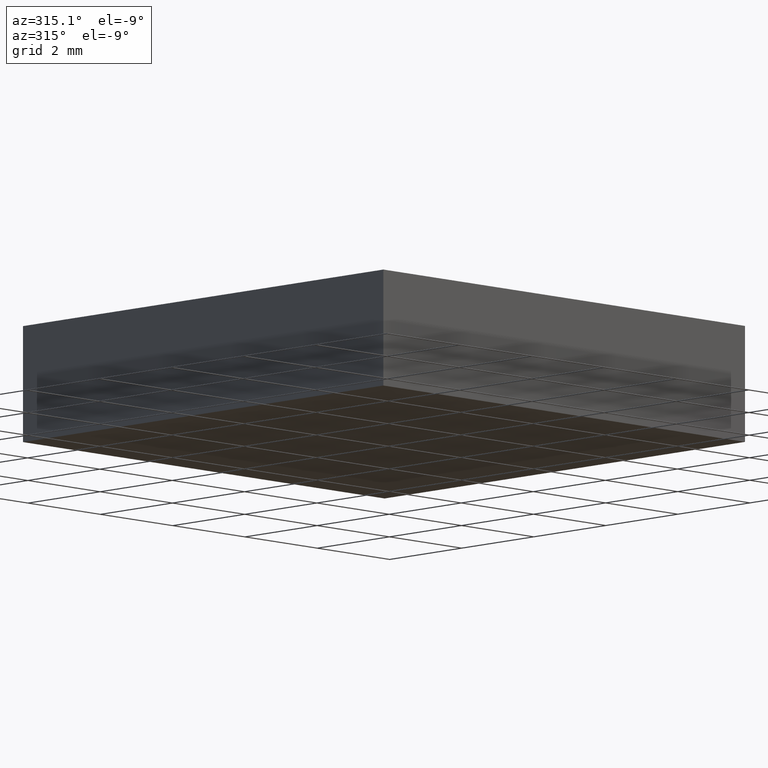
[diagram: clean part render]
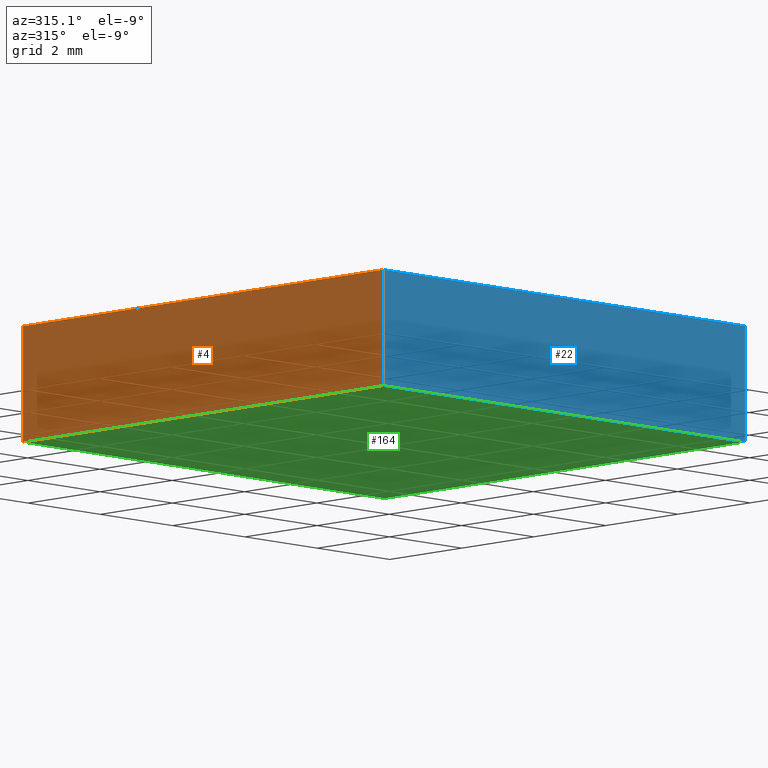
[diagram: same view with three faces highlighted in distinct colors, each labeled with its STEP entity id]
A machine part, auxiliary view with three faces highlighted in distinct colors.
Their STEP definitions:

[orange] entity #4 — the highlighted planar face has unit normal (1, 0, -0).
#2 = LINE ( 'NONE', #51, #152 ) ;
#4 = ADVANCED_FACE ( 'NONE', ( #126 ), #38, .F. ) ;
#7 = DIRECTION ( 'NONE',  ( -0.0000000000000000000, -0.0000000000000000000, -1.000000000000000000 ) ) ;
#14 = EDGE_CURVE ( 'NONE', #112, #180, #2, .T. ) ;
#21 = DIRECTION ( 'NONE',  ( 0.0000000000000000000, -1.000000000000000000, 0.0000000000000000000 ) ) ;
#23 = CARTESIAN_POINT ( 'NONE',  ( 35.49917431035403600, 19.62529673381063900, 2.299999999999999800 ) ) ;
#36 = DIRECTION ( 'NONE',  ( 1.000000000000000000, 0.0000000000000000000, -0.0000000000000000000 ) ) ;
#38 = PLANE ( 'NONE',  #187 ) ;
#44 = EDGE_CURVE ( 'NONE', #59, #132, #201, .T. ) ;
#51 = CARTESIAN_POINT ( 'NONE',  ( 35.49917431035403600, 29.62529673381063600, 2.299999999999999800 ) ) ;
#53 = CARTESIAN_POINT ( 'NONE',  ( 35.49917431035403600, 29.62529673381063600, 2.299999999999999800 ) ) ;
#57 = CARTESIAN_POINT ( 'NONE',  ( 35.49917431035403600, 29.62529673381063600, 2.299999999999999800 ) ) ;
#59 = VERTEX_POINT ( 'NONE', #23 ) ;
#71 = ORIENTED_EDGE ( 'NONE', *, *, #14, .T. ) ;
#78 = LINE ( 'NONE', #93, #99 ) ;
#82 = EDGE_CURVE ( 'NONE', #112, #59, #186, .T. ) ;
#86 = DIRECTION ( 'NONE',  ( -0.0000000000000000000, 0.0000000000000000000, -1.000000000000000000 ) ) ;
#88 = DIRECTION ( 'NONE',  ( -0.0000000000000000000, -0.0000000000000000000, -1.000000000000000000 ) ) ;
#90 = ORIENTED_EDGE ( 'NONE', *, *, #163, .T. ) ;
#91 = DIRECTION ( 'NONE',  ( 0.0000000000000000000, -1.000000000000000000, 0.0000000000000000000 ) ) ;
#93 = CARTESIAN_POINT ( 'NONE',  ( 35.49917431035403600, 29.62529673381063600, 0.0000000000000000000 ) ) ;
#99 = VECTOR ( 'NONE', #91, 1000.000000000000000 ) ;
#112 = VERTEX_POINT ( 'NONE', #57 ) ;
#117 = CARTESIAN_POINT ( 'NONE',  ( 35.49917431035403600, 29.62529673381063600, 2.299999999999999800 ) ) ;
#121 = VECTOR ( 'NONE', #21, 1000.000000000000000 ) ;
#126 = FACE_OUTER_BOUND ( 'NONE', #189, .T. ) ;
#129 = CARTESIAN_POINT ( 'NONE',  ( 35.49917431035403600, 29.62529673381063600, 0.0000000000000000000 ) ) ;
#132 = VERTEX_POINT ( 'NONE', #198 ) ;
#142 = CARTESIAN_POINT ( 'NONE',  ( 35.49917431035403600, 19.62529673381063900, 2.299999999999999800 ) ) ;
#152 = VECTOR ( 'NONE', #88, 1000.000000000000000 ) ;
#163 = EDGE_CURVE ( 'NONE', #180, #132, #78, .T. ) ;
#175 = VECTOR ( 'NONE', #7, 1000.000000000000000 ) ;
#180 = VERTEX_POINT ( 'NONE', #129 ) ;
#186 = LINE ( 'NONE', #53, #121 ) ;
#187 = AXIS2_PLACEMENT_3D ( 'NONE', #117, #36, #86 ) ;
#189 = EDGE_LOOP ( 'NONE', ( #90, #195, #197, #71 ) ) ;
#195 = ORIENTED_EDGE ( 'NONE', *, *, #44, .F. ) ;
#197 = ORIENTED_EDGE ( 'NONE', *, *, #82, .F. ) ;
#198 = CARTESIAN_POINT ( 'NONE',  ( 35.49917431035403600, 19.62529673381063900, 0.0000000000000000000 ) ) ;
#201 = LINE ( 'NONE', #142, #175 ) ;

[blue] entity #22 — the highlighted planar face has unit normal (0, 1, 0).
#6 = VECTOR ( 'NONE', #49, 1000.000000000000000 ) ;
#7 = DIRECTION ( 'NONE',  ( -0.0000000000000000000, -0.0000000000000000000, -1.000000000000000000 ) ) ;
#15 = LINE ( 'NONE', #118, #176 ) ;
#18 = AXIS2_PLACEMENT_3D ( 'NONE', #192, #52, #54 ) ;
#22 = ADVANCED_FACE ( 'NONE', ( #167 ), #73, .F. ) ;
#23 = CARTESIAN_POINT ( 'NONE',  ( 35.49917431035403600, 19.62529673381063900, 2.299999999999999800 ) ) ;
#24 = LINE ( 'NONE', #194, #6 ) ;
#30 = ORIENTED_EDGE ( 'NONE', *, *, #35, .F. ) ;
#34 = EDGE_LOOP ( 'NONE', ( #160, #153, #30, #75 ) ) ;
#35 = EDGE_CURVE ( 'NONE', #59, #80, #135, .T. ) ;
#44 = EDGE_CURVE ( 'NONE', #59, #132, #201, .T. ) ;
#49 = DIRECTION ( 'NONE',  ( 1.000000000000000000, 0.0000000000000000000, 0.0000000000000000000 ) ) ;
#52 = DIRECTION ( 'NONE',  ( 0.0000000000000000000, 1.000000000000000000, 0.0000000000000000000 ) ) ;
#54 = DIRECTION ( 'NONE',  ( 0.0000000000000000000, -0.0000000000000000000, 1.000000000000000000 ) ) ;
#55 = DIRECTION ( 'NONE',  ( -0.0000000000000000000, -0.0000000000000000000, -1.000000000000000000 ) ) ;
#59 = VERTEX_POINT ( 'NONE', #23 ) ;
#70 = EDGE_CURVE ( 'NONE', #132, #191, #24, .T. ) ;
#72 = CARTESIAN_POINT ( 'NONE',  ( 45.49917431035403600, 19.62529673381063900, 2.299999999999999800 ) ) ;
#73 = PLANE ( 'NONE',  #18 ) ;
#75 = ORIENTED_EDGE ( 'NONE', *, *, #44, .T. ) ;
#80 = VERTEX_POINT ( 'NONE', #72 ) ;
#85 = CARTESIAN_POINT ( 'NONE',  ( 35.49917431035403600, 19.62529673381063900, 2.299999999999999800 ) ) ;
#102 = DIRECTION ( 'NONE',  ( 1.000000000000000000, 0.0000000000000000000, 0.0000000000000000000 ) ) ;
#110 = VECTOR ( 'NONE', #102, 1000.000000000000000 ) ;
#118 = CARTESIAN_POINT ( 'NONE',  ( 45.49917431035403600, 19.62529673381063900, 2.299999999999999800 ) ) ;
#132 = VERTEX_POINT ( 'NONE', #198 ) ;
#135 = LINE ( 'NONE', #85, #110 ) ;
#142 = CARTESIAN_POINT ( 'NONE',  ( 35.49917431035403600, 19.62529673381063900, 2.299999999999999800 ) ) ;
#147 = CARTESIAN_POINT ( 'NONE',  ( 45.49917431035403600, 19.62529673381063900, 0.0000000000000000000 ) ) ;
#150 = EDGE_CURVE ( 'NONE', #80, #191, #15, .T. ) ;
#153 = ORIENTED_EDGE ( 'NONE', *, *, #150, .F. ) ;
#160 = ORIENTED_EDGE ( 'NONE', *, *, #70, .T. ) ;
#167 = FACE_OUTER_BOUND ( 'NONE', #34, .T. ) ;
#175 = VECTOR ( 'NONE', #7, 1000.000000000000000 ) ;
#176 = VECTOR ( 'NONE', #55, 1000.000000000000000 ) ;
#191 = VERTEX_POINT ( 'NONE', #147 ) ;
#192 = CARTESIAN_POINT ( 'NONE',  ( 35.49917431035403600, 19.62529673381063900, 2.299999999999999800 ) ) ;
#194 = CARTESIAN_POINT ( 'NONE',  ( 35.49917431035403600, 19.62529673381063900, 0.0000000000000000000 ) ) ;
#198 = CARTESIAN_POINT ( 'NONE',  ( 35.49917431035403600, 19.62529673381063900, 0.0000000000000000000 ) ) ;
#201 = LINE ( 'NONE', #142, #175 ) ;

[green] entity #164 — the highlighted planar face has unit normal (-0, 0, 1).
#1 = EDGE_CURVE ( 'NONE', #139, #180, #64, .T. ) ;
#6 = VECTOR ( 'NONE', #49, 1000.000000000000000 ) ;
#10 = CARTESIAN_POINT ( 'NONE',  ( 45.49917431035402900, 29.62529673381063600, 0.0000000000000000000 ) ) ;
#16 = EDGE_LOOP ( 'NONE', ( #69, #45, #40, #79 ) ) ;
#19 = VECTOR ( 'NONE', #166, 1000.000000000000000 ) ;
#24 = LINE ( 'NONE', #194, #6 ) ;
#26 = CARTESIAN_POINT ( 'NONE',  ( 0.0000000000000000000, 0.0000000000000000000, 0.0000000000000000000 ) ) ;
#40 = ORIENTED_EDGE ( 'NONE', *, *, #81, .F. ) ;
#42 = PLANE ( 'NONE',  #65 ) ;
#45 = ORIENTED_EDGE ( 'NONE', *, *, #1, .F. ) ;
#49 = DIRECTION ( 'NONE',  ( 1.000000000000000000, 0.0000000000000000000, 0.0000000000000000000 ) ) ;
#50 = FACE_OUTER_BOUND ( 'NONE', #16, .T. ) ;
#64 = LINE ( 'NONE', #123, #19 ) ;
#65 = AXIS2_PLACEMENT_3D ( 'NONE', #26, #182, #183 ) ;
#69 = ORIENTED_EDGE ( 'NONE', *, *, #163, .F. ) ;
#70 = EDGE_CURVE ( 'NONE', #132, #191, #24, .T. ) ;
#78 = LINE ( 'NONE', #93, #99 ) ;
#79 = ORIENTED_EDGE ( 'NONE', *, *, #70, .F. ) ;
#81 = EDGE_CURVE ( 'NONE', #191, #139, #165, .T. ) ;
#91 = DIRECTION ( 'NONE',  ( 0.0000000000000000000, -1.000000000000000000, 0.0000000000000000000 ) ) ;
#93 = CARTESIAN_POINT ( 'NONE',  ( 35.49917431035403600, 29.62529673381063600, 0.0000000000000000000 ) ) ;
#99 = VECTOR ( 'NONE', #91, 1000.000000000000000 ) ;
#123 = CARTESIAN_POINT ( 'NONE',  ( 35.49917431035403600, 29.62529673381063600, 0.0000000000000000000 ) ) ;
#129 = CARTESIAN_POINT ( 'NONE',  ( 35.49917431035403600, 29.62529673381063600, 0.0000000000000000000 ) ) ;
#132 = VERTEX_POINT ( 'NONE', #198 ) ;
#139 = VERTEX_POINT ( 'NONE', #10 ) ;
#144 = CARTESIAN_POINT ( 'NONE',  ( 45.49917431035402900, 29.62529673381063600, 0.0000000000000000000 ) ) ;
#147 = CARTESIAN_POINT ( 'NONE',  ( 45.49917431035403600, 19.62529673381063900, 0.0000000000000000000 ) ) ;
#163 = EDGE_CURVE ( 'NONE', #180, #132, #78, .T. ) ;
#164 = ADVANCED_FACE ( 'NONE', ( #50 ), #42, .F. ) ;
#165 = LINE ( 'NONE', #144, #172 ) ;
#166 = DIRECTION ( 'NONE',  ( -1.000000000000000000, -0.0000000000000000000, -0.0000000000000000000 ) ) ;
#172 = VECTOR ( 'NONE', #181, 1000.000000000000000 ) ;
#180 = VERTEX_POINT ( 'NONE', #129 ) ;
#181 = DIRECTION ( 'NONE',  ( -6.938893903907232300E-016, 1.000000000000000000, -0.0000000000000000000 ) ) ;
#182 = DIRECTION ( 'NONE',  ( -0.0000000000000000000, 0.0000000000000000000, 1.000000000000000000 ) ) ;
#183 = DIRECTION ( 'NONE',  ( 1.000000000000000000, 0.0000000000000000000, 0.0000000000000000000 ) ) ;
#191 = VERTEX_POINT ( 'NONE', #147 ) ;
#194 = CARTESIAN_POINT ( 'NONE',  ( 35.49917431035403600, 19.62529673381063900, 0.0000000000000000000 ) ) ;
#198 = CARTESIAN_POINT ( 'NONE',  ( 35.49917431035403600, 19.62529673381063900, 0.0000000000000000000 ) ) ;